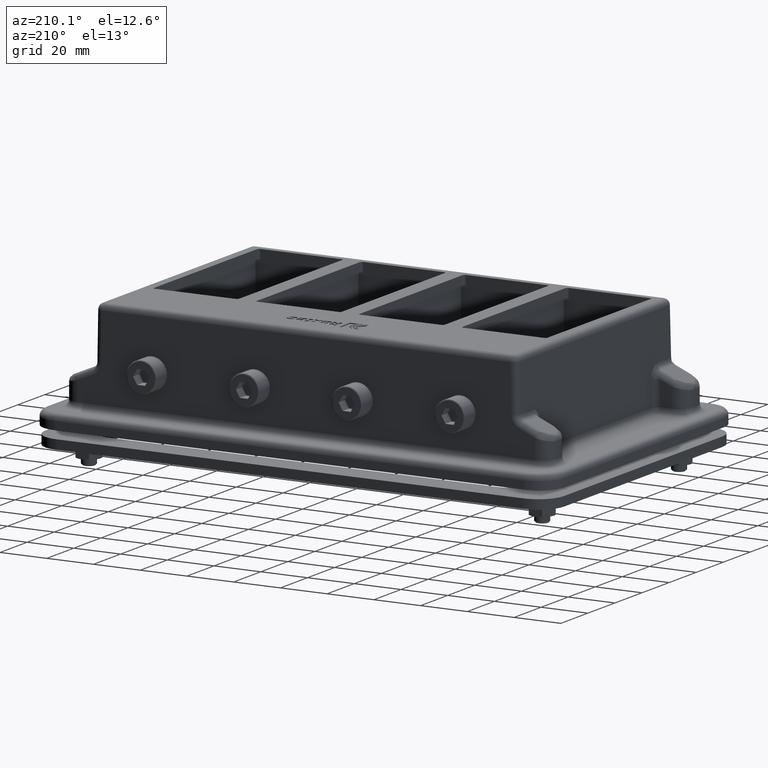
[diagram: clean part render]
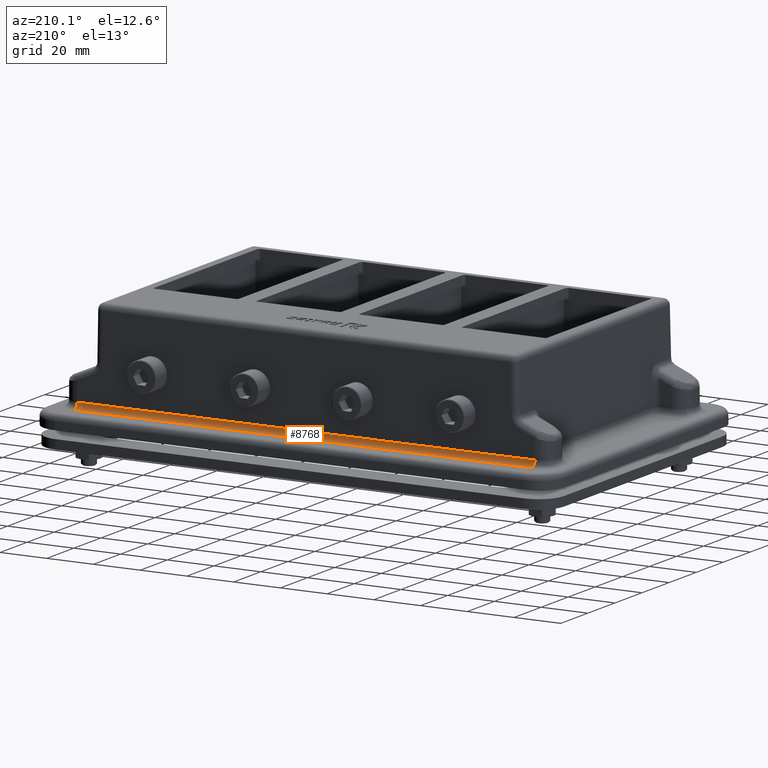
[diagram: same view with one face highlighted and labeled with its STEP entity id]
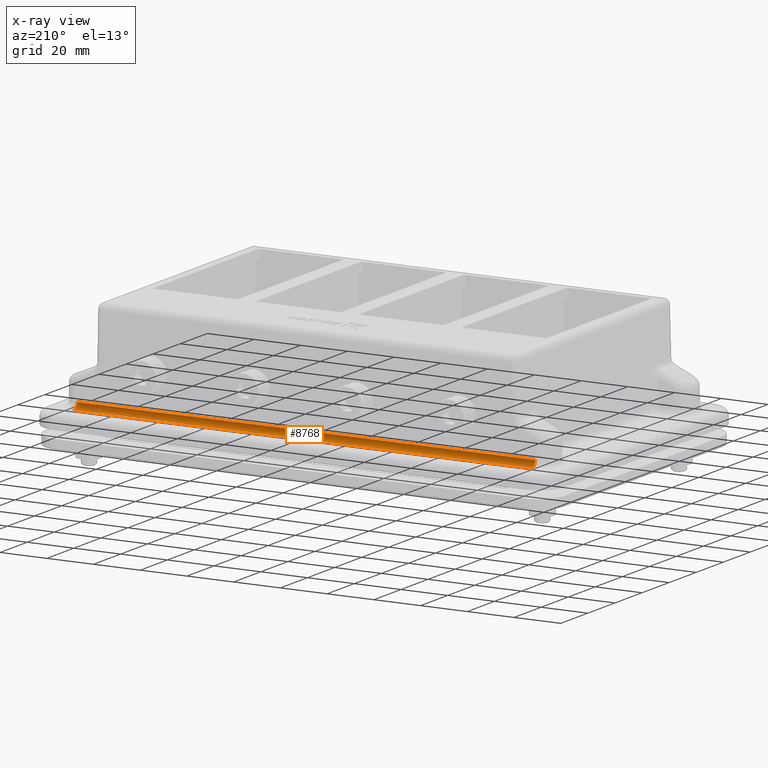
[diagram: x-ray of the same camera — body ghosted, the highlighted face saturated]
A machine part, auxiliary view. The second image highlights one B-rep face of the part: STEP entity #8768.
The next image is the same camera in x-ray: the body ghosted, the highlighted face saturated — about 0% of this face is hidden behind the body in this view.
In plain terms, the highlighted cylindrical surface (edge-blend (fillet) strip) has radius 2.5 mm, axis along (1, 0, 0).
Its self-contained STEP definition (entity closure, byte-faithful):
#243=CYLINDRICAL_SURFACE('',#9422,2.5);
#883=LINE('',#15088,#1620);
#884=LINE('',#15089,#1621);
#1620=VECTOR('',#11226,10.);
#1621=VECTOR('',#11227,10.);
#2307=FACE_OUTER_BOUND('',#2849,.T.);
#2849=EDGE_LOOP('',(#7020,#7021,#7022,#7023));
#3175=CIRCLE('',#9419,2.5);
#3178=CIRCLE('',#9423,2.5);
#3883=VERTEX_POINT('',#15079);
#3884=VERTEX_POINT('',#15080);
#3885=VERTEX_POINT('',#15085);
#3886=VERTEX_POINT('',#15086);
#4950=EDGE_CURVE('',#3883,#3884,#3175,.T.);
#4953=EDGE_CURVE('',#3885,#3886,#3178,.T.);
#4954=EDGE_CURVE('',#3886,#3884,#883,.T.);
#4955=EDGE_CURVE('',#3883,#3885,#884,.T.);
#7020=ORIENTED_EDGE('',*,*,#4953,.T.);
#7021=ORIENTED_EDGE('',*,*,#4954,.T.);
#7022=ORIENTED_EDGE('',*,*,#4950,.F.);
#7023=ORIENTED_EDGE('',*,*,#4955,.T.);
#8768=ADVANCED_FACE('',(#2307),#243,.F.);
#9419=AXIS2_PLACEMENT_3D('',#15081,#11216,#11217);
#9422=AXIS2_PLACEMENT_3D('',#15084,#11222,#11223);
#9423=AXIS2_PLACEMENT_3D('',#15087,#11224,#11225);
#11216=DIRECTION('center_axis',(1.,0.,1.22464679914735E-16));
#11217=DIRECTION('ref_axis',(0.,-1.,0.));
#11222=DIRECTION('center_axis',(1.,0.,1.22464679914735E-16));
#11223=DIRECTION('ref_axis',(8.65956056235493E-17,-0.707106781186548,-0.707106781186548));
#11224=DIRECTION('center_axis',(1.,7.105427357601E-15,1.22464679914735E-16));
#11225=DIRECTION('ref_axis',(7.105427357601E-15,-1.,8.7016388700601E-31));
#11226=DIRECTION('',(-1.,0.,-1.22464679914735E-16));
#11227=DIRECTION('',(1.,0.,1.22464679914735E-16));
#15079=CARTESIAN_POINT('',(-98.,57.5,-34.5));
#15080=CARTESIAN_POINT('',(-98.,60.,-37.));
#15081=CARTESIAN_POINT('Origin',(-98.,60.,-34.5));
#15084=CARTESIAN_POINT('Origin',(-45.,60.,-34.5));
#15085=CARTESIAN_POINT('',(98.,57.5,-34.5));
#15086=CARTESIAN_POINT('',(98.,60.,-37.));
#15087=CARTESIAN_POINT('Origin',(98.,60.,-34.5));
#15088=CARTESIAN_POINT('',(-45.,60.,-37.));
#15089=CARTESIAN_POINT('',(-45.,57.5,-34.5));